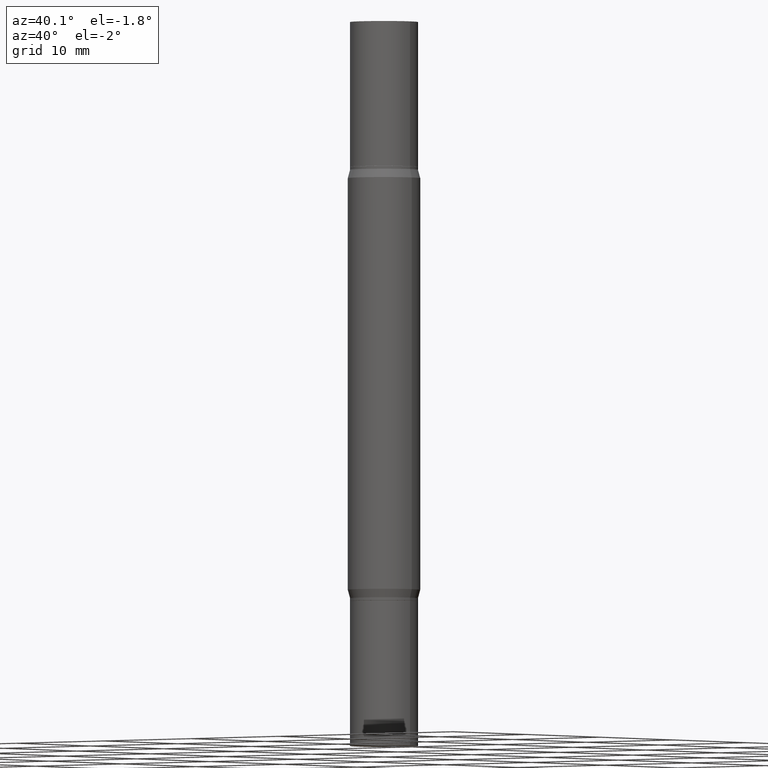
[diagram: clean part render]
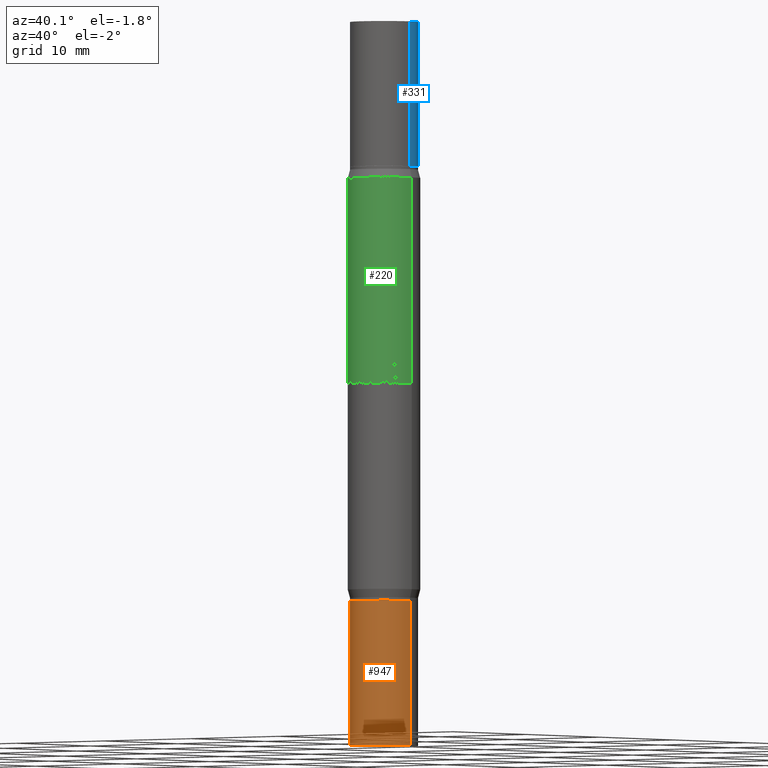
[diagram: same view with three faces highlighted in distinct colors, each labeled with its STEP entity id]
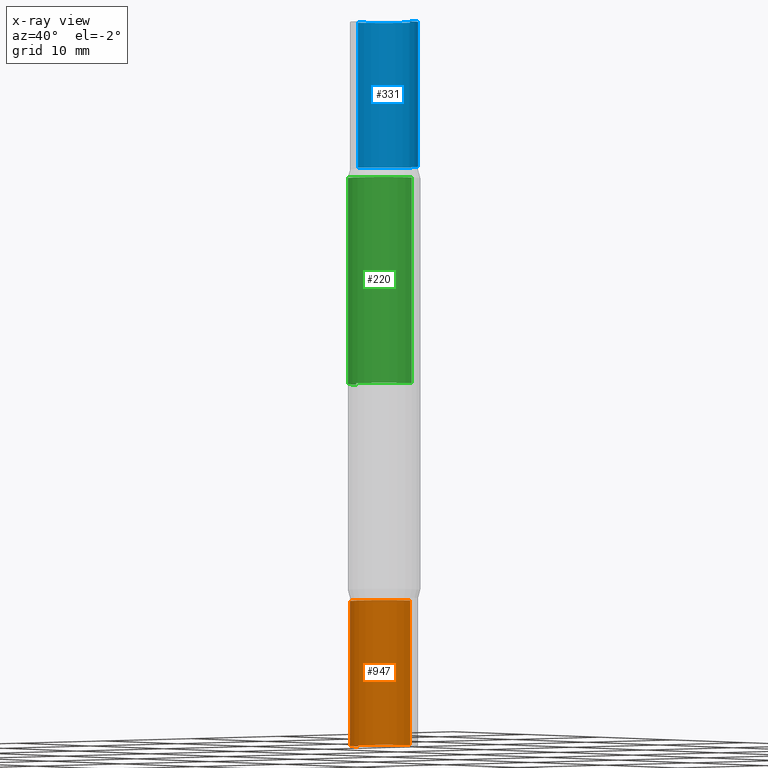
[diagram: x-ray of the same camera — body ghosted, the three highlighted faces saturated]
A machine part, auxiliary view with three faces highlighted in distinct colors.
The next image is the same camera in x-ray (body ghosted, the three faces saturated) — at least one of them is partly hidden behind the body in this view.
Their STEP definitions:

[orange] entity #947 — the highlighted cylindrical surface (edge-blend (fillet) strip) has radius 2.9769 mm, axis along (-0, 0, 1).
#11 = CARTESIAN_POINT ( 'NONE',  ( 0.1171999999999999986, -7.801365903511122804E-15, -2.000000000000000444 ) ) ;
#50 = VERTEX_POINT ( 'NONE', #747 ) ;
#52 = DIRECTION ( 'NONE',  ( 1.000000000000000000, -6.982962677686261977E-15, 0.000000000000000000 ) ) ;
#54 = CIRCLE ( 'NONE', #532, 0.1171999999999999986 ) ;
#59 = DIRECTION ( 'NONE',  ( 1.000000000000000000, -6.982962677686266711E-15, 4.876176775795935793E-29 ) ) ;
#94 = CARTESIAN_POINT ( 'NONE',  ( 0.1171999999999999986, -8.184032258248304553E-16, 5.714879181232836475E-30 ) ) ;
#99 = DIRECTION ( 'NONE',  ( 1.000000000000000000, -6.982962677686269866E-15, 0.000000000000000000 ) ) ;
#167 = VERTEX_POINT ( 'NONE', #11 ) ;
#182 = LINE ( 'NONE', #94, #882 ) ;
#215 = EDGE_LOOP ( 'NONE', ( #786, #635, #377, #931 ) ) ;
#248 = DIRECTION ( 'NONE',  ( -2.445468806185136877E-29, 3.491481338843145188E-15, 1.000000000000000000 ) ) ;
#251 = CARTESIAN_POINT ( 'NONE',  ( 4.890937612370273754E-29, -6.982962677686291954E-15, -2.000000000000000444 ) ) ;
#269 = CARTESIAN_POINT ( 'NONE',  ( -0.1171999999999999986, 8.327560863108374081E-16, -5.764991925778749121E-30 ) ) ;
#302 = AXIS2_PLACEMENT_3D ( 'NONE', #723, #490, #52 ) ;
#377 = ORIENTED_EDGE ( 'NONE', *, *, #676, .T. ) ;
#422 = VERTEX_POINT ( 'NONE', #641 ) ;
#427 = VECTOR ( 'NONE', #569, 39.37007874015748143 ) ;
#434 = EDGE_CURVE ( 'NONE', #422, #444, #944, .T. ) ;
#444 = VERTEX_POINT ( 'NONE', #600 ) ;
#490 = DIRECTION ( 'NONE',  ( -2.445468806185136597E-29, 3.491481338843145583E-15, 1.000000000000000000 ) ) ;
#532 = AXIS2_PLACEMENT_3D ( 'NONE', #251, #550, #99 ) ;
#550 = DIRECTION ( 'NONE',  ( -2.445468806185136597E-29, 3.491481338843145583E-15, 1.000000000000000000 ) ) ;
#569 = DIRECTION ( 'NONE',  ( -2.445468806185136877E-29, 3.491481338843145188E-15, 1.000000000000000000 ) ) ;
#600 = CARTESIAN_POINT ( 'NONE',  ( -0.1171999999999999986, -7.023076926086241238E-15, -2.000000000000000444 ) ) ;
#635 = ORIENTED_EDGE ( 'NONE', *, *, #828, .T. ) ;
#641 = CARTESIAN_POINT ( 'NONE',  ( -0.1171999999999999986, -7.023076926086241238E-15, -2.500000000000000000 ) ) ;
#661 = AXIS2_PLACEMENT_3D ( 'NONE', #670, #675, #59 ) ;
#667 = EDGE_CURVE ( 'NONE', #444, #167, #54, .T. ) ;
#670 = CARTESIAN_POINT ( 'NONE',  ( 0.000000000000000000, 0.000000000000000000, 0.000000000000000000 ) ) ;
#675 = DIRECTION ( 'NONE',  ( -2.445468806185136597E-29, 3.491481338843145583E-15, 1.000000000000000000 ) ) ;
#676 = EDGE_CURVE ( 'NONE', #50, #167, #182, .T. ) ;
#723 = CARTESIAN_POINT ( 'NONE',  ( 6.113672015462842613E-29, -8.728703347107864943E-15, -2.500000000000000000 ) ) ;
#747 = CARTESIAN_POINT ( 'NONE',  ( 0.1171999999999999986, -9.547106572932694215E-15, -2.500000000000000000 ) ) ;
#786 = ORIENTED_EDGE ( 'NONE', *, *, #434, .F. ) ;
#804 = CIRCLE ( 'NONE', #302, 0.1171999999999999986 ) ;
#828 = EDGE_CURVE ( 'NONE', #422, #50, #804, .T. ) ;
#882 = VECTOR ( 'NONE', #248, 39.37007874015748143 ) ;
#931 = ORIENTED_EDGE ( 'NONE', *, *, #667, .F. ) ;
#944 = LINE ( 'NONE', #269, #427 ) ;
#947 = ADVANCED_FACE ( 'NONE', ( #961 ), #968, .T. ) ;
#961 = FACE_OUTER_BOUND ( 'NONE', #215, .T. ) ;
#968 = CYLINDRICAL_SURFACE ( 'NONE', #661, 0.1171999999999999986 ) ;

[blue] entity #331 — the highlighted cylindrical surface (edge-blend (fillet) strip) has radius 2.9769 mm, axis along (-0, -0, -1).
#16 = ORIENTED_EDGE ( 'NONE', *, *, #364, .T. ) ;
#51 = VECTOR ( 'NONE', #437, 39.37007874015748143 ) ;
#108 = AXIS2_PLACEMENT_3D ( 'NONE', #246, #243, #166 ) ;
#133 = CARTESIAN_POINT ( 'NONE',  ( 0.1171999999999999986, -2.563901078157915826E-15, -0.4999999999999993339 ) ) ;
#135 = VERTEX_POINT ( 'NONE', #133 ) ;
#149 = CARTESIAN_POINT ( 'NONE',  ( -0.1171999999999999986, -7.925057676916510614E-15, -2.499999999999999556 ) ) ;
#166 = DIRECTION ( 'NONE',  ( 1.000000000000000000, -6.982962677686266711E-15, 0.000000000000000000 ) ) ;
#179 = AXIS2_PLACEMENT_3D ( 'NONE', #363, #892, #416 ) ;
#186 = DIRECTION ( 'NONE',  ( -2.445468806185136597E-29, -3.491805094961124077E-15, -1.000000000000000000 ) ) ;
#187 = EDGE_CURVE ( 'NONE', #717, #381, #819, .T. ) ;
#201 = FACE_OUTER_BOUND ( 'NONE', #765, .T. ) ;
#243 = DIRECTION ( 'NONE',  ( 2.445468806185136597E-29, 3.491805094961124077E-15, 1.000000000000000000 ) ) ;
#246 = CARTESIAN_POINT ( 'NONE',  ( 6.113672015462842613E-29, 4.046951474745467748E-19, 5.463695987328526437E-16 ) ) ;
#331 = ADVANCED_FACE ( 'NONE', ( #201 ), #496, .T. ) ;
#363 = CARTESIAN_POINT ( 'NONE',  ( 4.890937612370273754E-29, -1.745497852333085568E-15, -0.4999999999999993339 ) ) ;
#364 = EDGE_CURVE ( 'NONE', #717, #135, #421, .T. ) ;
#381 = VERTEX_POINT ( 'NONE', #481 ) ;
#411 = CIRCLE ( 'NONE', #179, 0.1171999999999999986 ) ;
#416 = DIRECTION ( 'NONE',  ( 1.000000000000000000, -6.982962677686265922E-15, 0.000000000000000000 ) ) ;
#421 = LINE ( 'NONE', #554, #472 ) ;
#437 = DIRECTION ( 'NONE',  ( -2.445468806185136877E-29, -3.491805094961123683E-15, -1.000000000000000000 ) ) ;
#472 = VECTOR ( 'NONE', #856, 39.37007874015748143 ) ;
#481 = CARTESIAN_POINT ( 'NONE',  ( -0.1171999999999999986, -6.849621325398194571E-17, 5.463695987328557991E-16 ) ) ;
#491 = EDGE_CURVE ( 'NONE', #381, #669, #808, .T. ) ;
#496 = CYLINDRICAL_SURFACE ( 'NONE', #824, 0.1171999999999999986 ) ;
#554 = CARTESIAN_POINT ( 'NONE',  ( 0.1171999999999999986, -9.547511268080165952E-15, -2.499999999999999556 ) ) ;
#562 = DIRECTION ( 'NONE',  ( 1.000000000000000000, -6.982962677686269866E-15, 0.000000000000000000 ) ) ;
#564 = ORIENTED_EDGE ( 'NONE', *, *, #491, .F. ) ;
#639 = ORIENTED_EDGE ( 'NONE', *, *, #880, .T. ) ;
#646 = CARTESIAN_POINT ( 'NONE',  ( 0.000000000000000000, -8.729108042255335103E-15, -2.499999999999999556 ) ) ;
#669 = VERTEX_POINT ( 'NONE', #783 ) ;
#717 = VERTEX_POINT ( 'NONE', #778 ) ;
#733 = ORIENTED_EDGE ( 'NONE', *, *, #187, .F. ) ;
#765 = EDGE_LOOP ( 'NONE', ( #564, #733, #16, #639 ) ) ;
#778 = CARTESIAN_POINT ( 'NONE',  ( 0.1171999999999999986, -8.179985306773559567E-16, 5.463695987328526437E-16 ) ) ;
#783 = CARTESIAN_POINT ( 'NONE',  ( -0.1171999999999999986, -6.849621325398205664E-17, -0.4999999999999993339 ) ) ;
#808 = LINE ( 'NONE', #149, #51 ) ;
#819 = CIRCLE ( 'NONE', #108, 0.1171999999999999986 ) ;
#824 = AXIS2_PLACEMENT_3D ( 'NONE', #646, #186, #562 ) ;
#856 = DIRECTION ( 'NONE',  ( -2.445468806185136877E-29, -3.491805094961123683E-15, -1.000000000000000000 ) ) ;
#880 = EDGE_CURVE ( 'NONE', #135, #669, #411, .T. ) ;
#892 = DIRECTION ( 'NONE',  ( 2.445468806185136597E-29, 3.491805094961124077E-15, 1.000000000000000000 ) ) ;

[green] entity #220 — the highlighted cylindrical surface (edge-blend (fillet) strip) has radius 3.175 mm, axis along (-0, -0, -1).
#3 = CARTESIAN_POINT ( 'NONE',  ( 0.1250000000000000000, -9.601978376966118441E-15, -2.499999999999999556 ) ) ;
#5 = VECTOR ( 'NONE', #572, 39.37007874015748143 ) ;
#21 = EDGE_LOOP ( 'NONE', ( #575, #614, #674, #117 ) ) ;
#43 = CARTESIAN_POINT ( 'NONE',  ( 4.795295336410958635E-29, -1.882062336673981410E-15, -0.5391099962990381078 ) ) ;
#81 = AXIS2_PLACEMENT_3D ( 'NONE', #608, #909, #389 ) ;
#82 = DIRECTION ( 'NONE',  ( -2.445468806185136597E-29, -3.491805094961124077E-15, -1.000000000000000000 ) ) ;
#112 = CIRCLE ( 'NONE', #443, 0.1250000000000000000 ) ;
#117 = ORIENTED_EDGE ( 'NONE', *, *, #954, .F. ) ;
#220 = ADVANCED_FACE ( 'NONE', ( #761 ), #849, .T. ) ;
#261 = EDGE_CURVE ( 'NONE', #357, #834, #286, .T. ) ;
#274 = DIRECTION ( 'NONE',  ( 1.000000000000000000, -6.982962677686266711E-15, 0.000000000000000000 ) ) ;
#280 = VERTEX_POINT ( 'NONE', #802 ) ;
#286 = CIRCLE ( 'NONE', #81, 0.1250000000000000000 ) ;
#312 = CARTESIAN_POINT ( 'NONE',  ( 0.000000000000000000, -8.729108042255335103E-15, -2.499999999999999556 ) ) ;
#343 = CARTESIAN_POINT ( 'NONE',  ( -0.1250000000000000000, -2.265644755392513326E-15, -1.249999999999999778 ) ) ;
#344 = DIRECTION ( 'NONE',  ( 2.445468806185136597E-29, 3.491805094961124077E-15, 1.000000000000000000 ) ) ;
#357 = VERTEX_POINT ( 'NONE', #779 ) ;
#359 = LINE ( 'NONE', #3, #456 ) ;
#389 = DIRECTION ( 'NONE',  ( 0.000000000000000000, 1.000000000000000000, -4.370956789862821150E-15 ) ) ;
#420 = EDGE_CURVE ( 'NONE', #280, #753, #112, .T. ) ;
#443 = AXIS2_PLACEMENT_3D ( 'NONE', #43, #344, #274 ) ;
#456 = VECTOR ( 'NONE', #897, 39.37007874015748143 ) ;
#572 = DIRECTION ( 'NONE',  ( -2.445468806185136877E-29, -3.491805094961123683E-15, -1.000000000000000000 ) ) ;
#575 = ORIENTED_EDGE ( 'NONE', *, *, #420, .F. ) ;
#608 = CARTESIAN_POINT ( 'NONE',  ( 3.056836007731420185E-29, -4.364351673553931682E-15, -1.249999999999999778 ) ) ;
#614 = ORIENTED_EDGE ( 'NONE', *, *, #928, .T. ) ;
#674 = ORIENTED_EDGE ( 'NONE', *, *, #261, .F. ) ;
#692 = AXIS2_PLACEMENT_3D ( 'NONE', #312, #82, #694 ) ;
#694 = DIRECTION ( 'NONE',  ( 1.000000000000000000, -6.982962677686262766E-15, 0.000000000000000000 ) ) ;
#714 = CARTESIAN_POINT ( 'NONE',  ( -0.1250000000000000000, -7.871545792533893657E-15, -2.499999999999999556 ) ) ;
#729 = CARTESIAN_POINT ( 'NONE',  ( 0.1250000000000000000, -2.754932671384765144E-15, -0.5391099962990381078 ) ) ;
#753 = VERTEX_POINT ( 'NONE', #729 ) ;
#761 = FACE_OUTER_BOUND ( 'NONE', #21, .T. ) ;
#779 = CARTESIAN_POINT ( 'NONE',  ( 0.1250000000000000000, -3.996077339824737716E-15, -1.249999999999999778 ) ) ;
#791 = LINE ( 'NONE', #714, #5 ) ;
#802 = CARTESIAN_POINT ( 'NONE',  ( -0.1250000000000000000, -1.024500086952540162E-15, -0.5391099962990381078 ) ) ;
#834 = VERTEX_POINT ( 'NONE', #343 ) ;
#849 = CYLINDRICAL_SURFACE ( 'NONE', #692, 0.1250000000000000000 ) ;
#897 = DIRECTION ( 'NONE',  ( -2.445468806185136877E-29, -3.491805094961123683E-15, -1.000000000000000000 ) ) ;
#909 = DIRECTION ( 'NONE',  ( -0.000000000000000000, -3.491643216902134830E-15, -1.000000000000000000 ) ) ;
#928 = EDGE_CURVE ( 'NONE', #280, #834, #791, .T. ) ;
#954 = EDGE_CURVE ( 'NONE', #753, #357, #359, .T. ) ;